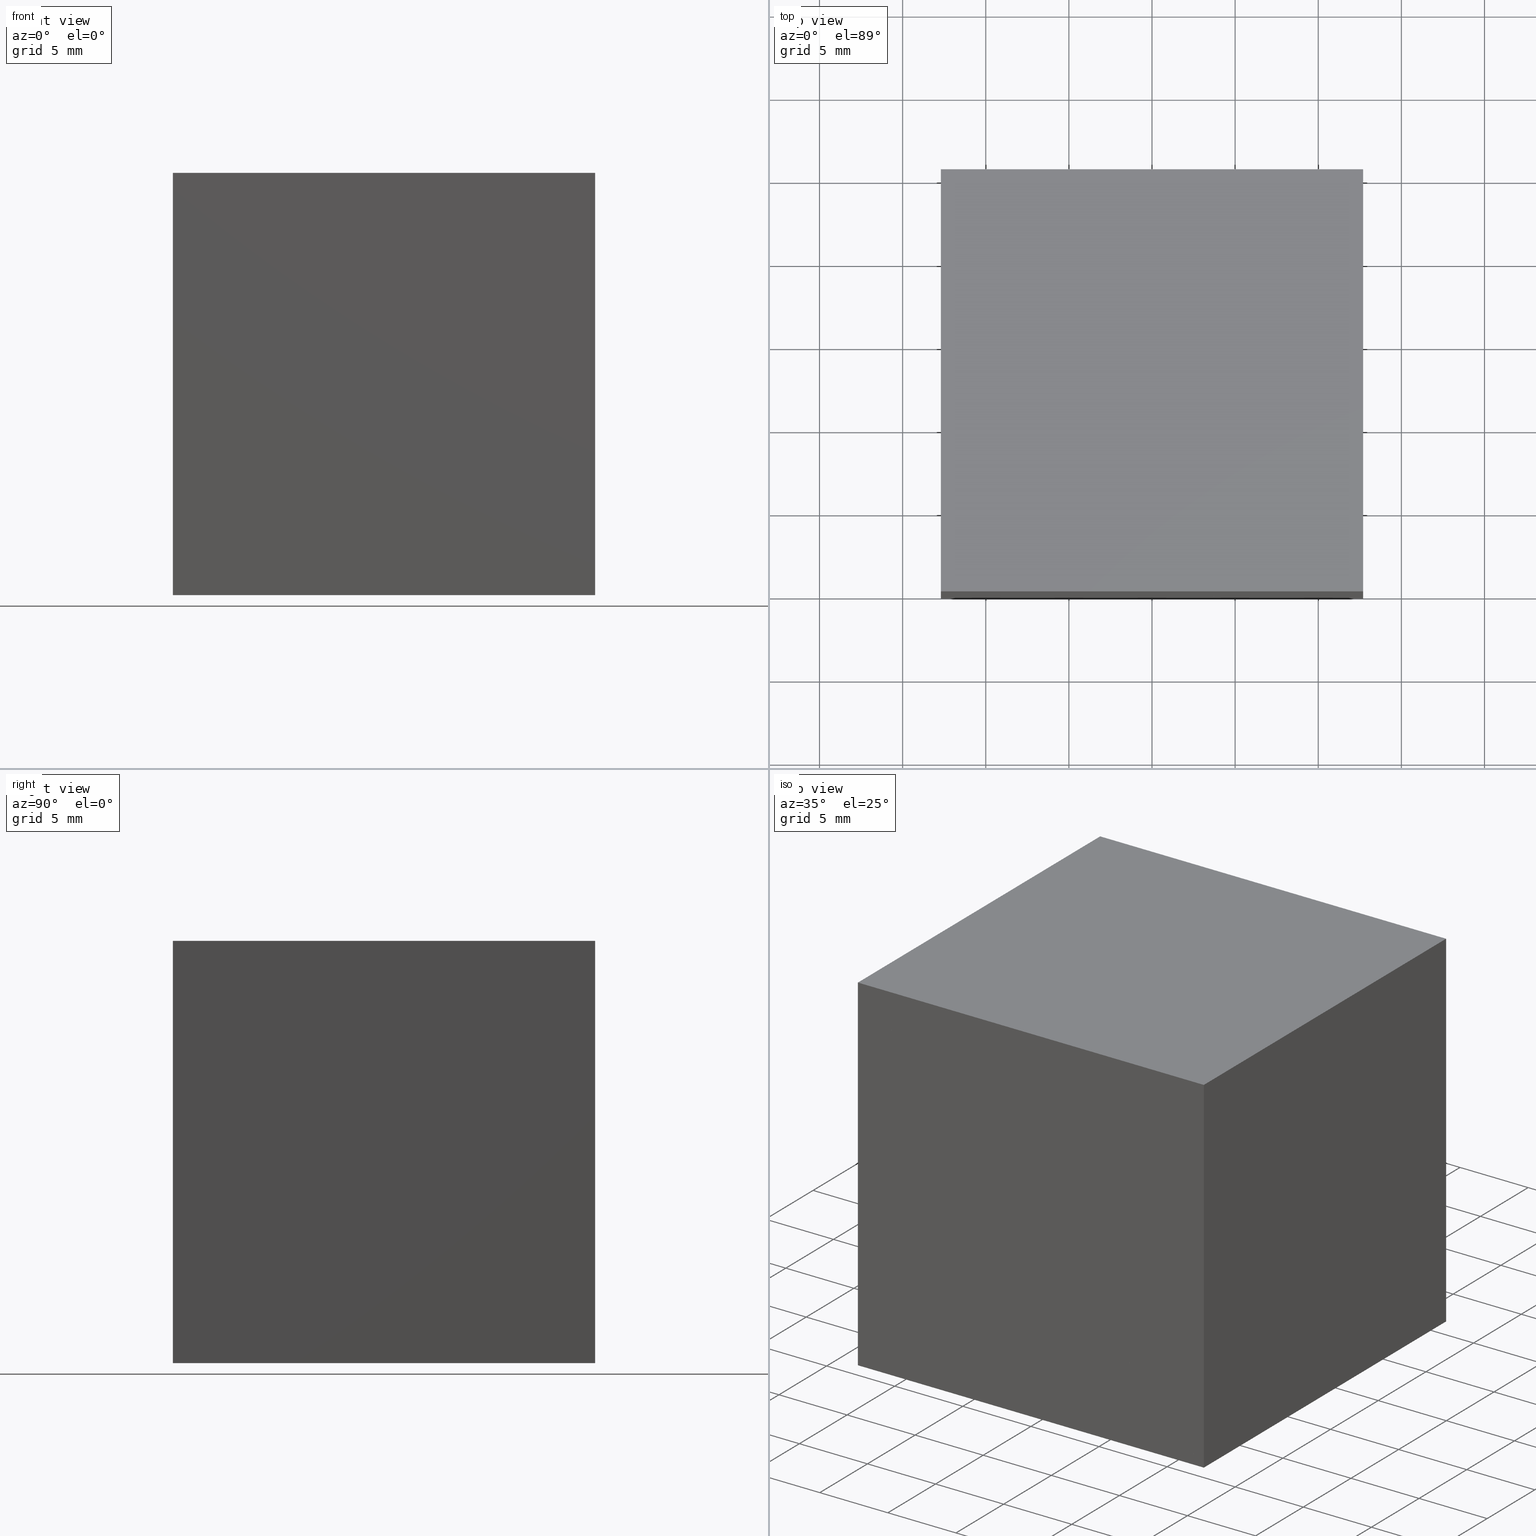
[diagram: canonical four-view strip — front | top / right | iso, engineering-drawing reading convention]
A machine part, canonical four-view strip (front | top / right | iso — engineering-drawing reading convention). The complete STEP part file that produces these views, byte-faithful:
ISO-10303-21;
HEADER;
FILE_DESCRIPTION (( 'STEP AP203' ),
    '1' );
FILE_NAME ('372010.STEP',
    '2021-05-27T01:55:18',
    ( '' ),
    ( '' ),
    'SwSTEP 2.0',
    'SolidWorks 2020',
    '' );
FILE_SCHEMA (( 'CONFIG_CONTROL_DESIGN' ));
ENDSEC;

DATA;
#1 = CARTESIAN_POINT ( 'NONE',  ( 12.69999999999999929, 25.39999999999999858, -12.69999999999999929 ) ) ;
#2 = DIRECTION ( 'NONE',  ( 0.000000000000000000, 1.000000000000000000, 0.000000000000000000 ) ) ;
#3 = ORIENTED_EDGE ( 'NONE', *, *, #107, .F. ) ;
#4 = LINE ( 'NONE', #226, #314 ) ;
#5 = PERSON_AND_ORGANIZATION_ROLE ( 'design_owner' ) ;
#6 = CARTESIAN_POINT ( 'NONE',  ( -12.69999999999999929, 0.000000000000000000, 12.69999999999999929 ) ) ;
#7 = DATE_AND_TIME ( #154, #204 ) ;
#8 = VECTOR ( 'NONE', #189, 1000.000000000000000 ) ;
#9 = EDGE_LOOP ( 'NONE', ( #39, #288, #109, #178 ) ) ;
#10 = PERSON_AND_ORGANIZATION ( #31, #128 ) ;
#11 = EDGE_LOOP ( 'NONE', ( #17, #156, #212, #62 ) ) ;
#12 = APPROVAL_STATUS ( 'not_yet_approved' ) ;
#13 = ORIENTED_EDGE ( 'NONE', *, *, #88, .F. ) ;
#14 = AXIS2_PLACEMENT_3D ( 'NONE', #222, #171, #225 ) ;
#15 = CALENDAR_DATE ( 2021, 27, 5 ) ;
#16 = LOCAL_TIME ( 9, 55, 18.00000000000000000, #232 ) ;
#17 = ORIENTED_EDGE ( 'NONE', *, *, #312, .T. ) ;
#18 = EDGE_CURVE ( 'NONE', #284, #137, #207, .T. ) ;
#19 = PERSON_AND_ORGANIZATION ( #31, #128 ) ;
#20 = PLANE ( 'NONE',  #230 ) ;
#21 = FACE_OUTER_BOUND ( 'NONE', #209, .T. ) ;
#22 = LINE ( 'NONE', #117, #297 ) ;
#23 = PERSON_AND_ORGANIZATION ( #31, #128 ) ;
#24 = DIRECTION ( 'NONE',  ( 0.000000000000000000, 1.000000000000000000, 0.000000000000000000 ) ) ;
#25 = DIRECTION ( 'NONE',  ( 0.000000000000000000, 1.000000000000000000, 0.000000000000000000 ) ) ;
#26 = DIRECTION ( 'NONE',  ( 1.000000000000000000, 0.000000000000000000, 0.000000000000000000 ) ) ;
#27 = VECTOR ( 'NONE', #243, 1000.000000000000000 ) ;
#28 = CC_DESIGN_APPROVAL ( #271, ( #69 ) ) ;
#29 = CARTESIAN_POINT ( 'NONE',  ( -12.69999999999999929, 25.39999999999999858, 12.69999999999999929 ) ) ;
#30 = CARTESIAN_POINT ( 'NONE',  ( 12.69999999999999929, 25.39999999999999858, -12.69999999999999929 ) ) ;
#31 = PERSON ( 'δָ��', 'δָ��', 'δָ��', ('δָ��'), ('δָ��'), ('δָ��') ) ;
#32 = DIRECTION ( 'NONE',  ( -0.7071067811865474617, 0.000000000000000000, 0.7071067811865474617 ) ) ;
#33 = CARTESIAN_POINT ( 'NONE',  ( -12.69999999999999929, 25.39999999999999858, 12.69999999999999929 ) ) ;
#34 = VERTEX_POINT ( 'NONE', #87 ) ;
#35 = APPROVAL_PERSON_ORGANIZATION ( #281, #162, #59 ) ;
#36 = EDGE_LOOP ( 'NONE', ( #37, #259, #161, #13 ) ) ;
#37 = ORIENTED_EDGE ( 'NONE', *, *, #289, .T. ) ;
#38 = COORDINATED_UNIVERSAL_TIME_OFFSET ( 8, 0, .AHEAD. ) ;
#39 = ORIENTED_EDGE ( 'NONE', *, *, #169, .T. ) ;
#40 = AXIS2_PLACEMENT_3D ( 'NONE', #227, #122, #102 ) ;
#41 = DATE_TIME_ROLE ( 'creation_date' ) ;
#42 = DIRECTION ( 'NONE',  ( 0.000000000000000000, -1.000000000000000000, 0.000000000000000000 ) ) ;
#43 = PRODUCT_RELATED_PRODUCT_CATEGORY ( 'detail', '', ( #47 ) ) ;
#44 = CARTESIAN_POINT ( 'NONE',  ( 12.69999999999999929, 25.39999999999999858, 12.69999999999999929 ) ) ;
#45 = DIRECTION ( 'NONE',  ( 0.000000000000000000, 1.000000000000000000, 0.000000000000000000 ) ) ;
#46 = MECHANICAL_CONTEXT ( 'NONE', #153, 'mechanical' ) ;
#47 = PRODUCT ( '372010', '372010', '', ( #46 ) ) ;
#48 = ADVANCED_FACE ( 'NONE', ( #261 ), #182, .T. ) ;
#49 = CARTESIAN_POINT ( 'NONE',  ( 12.69999999999999929, 0.000000000000000000, -12.69999999999999929 ) ) ;
#50 = CARTESIAN_POINT ( 'NONE',  ( -12.69999999999999929, 0.000000000000000000, 12.69999999999999929 ) ) ;
#51 = LINE ( 'NONE', #50, #92 ) ;
#52 = ADVANCED_FACE ( 'NONE', ( #241 ), #20, .T. ) ;
#53 = VECTOR ( 'NONE', #103, 1000.000000000000000 ) ;
#54 = DIRECTION ( 'NONE',  ( -0.7071067811865474617, 0.000000000000000000, 0.7071067811865474617 ) ) ;
#55 = EDGE_CURVE ( 'NONE', #206, #286, #139, .T. ) ;
#56 = ORIENTED_EDGE ( 'NONE', *, *, #307, .T. ) ;
#57 =( LENGTH_UNIT ( ) NAMED_UNIT ( * ) SI_UNIT ( .MILLI., .METRE. ) );
#58 = LOCAL_TIME ( 9, 55, 18.00000000000000000, #229 ) ;
#59 = APPROVAL_ROLE ( '' ) ;
#60 = ORIENTED_EDGE ( 'NONE', *, *, #164, .T. ) ;
#61 = SECURITY_CLASSIFICATION_LEVEL ( 'unclassified' ) ;
#62 = ORIENTED_EDGE ( 'NONE', *, *, #55, .F. ) ;
#63 = PERSON_AND_ORGANIZATION_ROLE ( 'creator' ) ;
#64 = ORIENTED_EDGE ( 'NONE', *, *, #141, .F. ) ;
#65 = CARTESIAN_POINT ( 'NONE',  ( 12.69999999999999929, 0.000000000000000000, -12.69999999999999929 ) ) ;
#66 = AXIS2_PLACEMENT_3D ( 'NONE', #201, #123, #2 ) ;
#67 = VECTOR ( 'NONE', #173, 1000.000000000000000 ) ;
#68 = VECTOR ( 'NONE', #158, 1000.000000000000114 ) ;
#69 = PRODUCT_DEFINITION_FORMATION_WITH_SPECIFIED_SOURCE ( '�κ�', '', #47, .NOT_KNOWN. ) ;
#70 = ORIENTED_EDGE ( 'NONE', *, *, #138, .F. ) ;
#71 = LINE ( 'NONE', #215, #316 ) ;
#72 = PLANE ( 'NONE',  #148 ) ;
#73 = VECTOR ( 'NONE', #193, 1000.000000000000000 ) ;
#74 = CARTESIAN_POINT ( 'NONE',  ( 12.69999999999999929, 25.39999999999999858, 12.69999999999999929 ) ) ;
#75 = ADVANCED_FACE ( 'NONE', ( #270 ), #315, .T. ) ;
#76 = PLANE ( 'NONE',  #203 ) ;
#77 = CC_DESIGN_PERSON_AND_ORGANIZATION_ASSIGNMENT ( #152, #112, ( #170 ) ) ;
#78 = DIRECTION ( 'NONE',  ( 0.7071067811865474617, 0.000000000000000000, -0.7071067811865474617 ) ) ;
#79 = PLANE ( 'NONE',  #14 ) ;
#80 = PLANE ( 'NONE',  #40 ) ;
#81 = VERTEX_POINT ( 'NONE', #118 ) ;
#82 = LINE ( 'NONE', #33, #67 ) ;
#83 = CLOSED_SHELL ( 'NONE', ( #119, #255, #318, #149, #258 ) ) ;
#84 = APPROVAL_STATUS ( 'not_yet_approved' ) ;
#85 = VERTEX_POINT ( 'NONE', #121 ) ;
#86 = DATE_AND_TIME ( #15, #151 ) ;
#87 = CARTESIAN_POINT ( 'NONE',  ( -12.69999999999999929, 0.000000000000000000, -12.69999999999999929 ) ) ;
#88 = EDGE_CURVE ( 'NONE', #34, #127, #71, .T. ) ;
#89 = EDGE_LOOP ( 'NONE', ( #233, #91, #56 ) ) ;
#90 = EDGE_LOOP ( 'NONE', ( #60, #275, #183, #304 ) ) ;
#91 = ORIENTED_EDGE ( 'NONE', *, *, #265, .T. ) ;
#92 = VECTOR ( 'NONE', #78, 1000.000000000000114 ) ;
#93 = CARTESIAN_POINT ( 'NONE',  ( -12.69999999999999929, 25.39999999999999858, -12.69999999999999929 ) ) ;
#94 = CARTESIAN_POINT ( 'NONE',  ( -12.69999999999999929, 0.000000000000000000, 12.69999999999999929 ) ) ;
#95 = FACE_OUTER_BOUND ( 'NONE', #133, .T. ) ;
#96 = DIRECTION ( 'NONE',  ( -0.000000000000000000, 1.000000000000000000, 0.000000000000000000 ) ) ;
#97 = PRODUCT_DEFINITION ( 'δ֪', '', #69, #287 ) ;
#98 = LINE ( 'NONE', #266, #301 ) ;
#99 = PLANE ( 'NONE',  #202 ) ;
#100 =( GEOMETRIC_REPRESENTATION_CONTEXT ( 3 ) GLOBAL_UNCERTAINTY_ASSIGNED_CONTEXT ( ( #179 ) ) GLOBAL_UNIT_ASSIGNED_CONTEXT ( ( #57, #197, #147 ) ) REPRESENTATION_CONTEXT ( 'NONE', 'WORKASPACE' ) );
#101 = APPLICATION_CONTEXT ( 'configuration controlled 3d designs of mechanical parts and assemblies' ) ;
#102 = DIRECTION ( 'NONE',  ( 1.000000000000000000, 0.000000000000000000, 0.000000000000000000 ) ) ;
#103 = DIRECTION ( 'NONE',  ( 0.000000000000000000, 0.000000000000000000, 1.000000000000000000 ) ) ;
#104 = VECTOR ( 'NONE', #165, 1000.000000000000000 ) ;
#105 = LINE ( 'NONE', #279, #191 ) ;
#106 = SHAPE_DEFINITION_REPRESENTATION ( #267, #181 ) ;
#107 = EDGE_CURVE ( 'NONE', #85, #284, #98, .T. ) ;
#108 = ORIENTED_EDGE ( 'NONE', *, *, #55, .T. ) ;
#109 = ORIENTED_EDGE ( 'NONE', *, *, #307, .F. ) ;
#110 = PERSON_AND_ORGANIZATION ( #31, #128 ) ;
#111 = VERTEX_POINT ( 'NONE', #44 ) ;
#112 = PERSON_AND_ORGANIZATION_ROLE ( 'classification_officer' ) ;
#113 = CARTESIAN_POINT ( 'NONE',  ( -12.69999999999999929, 0.000000000000000000, 12.69999999999999929 ) ) ;
#114 = CARTESIAN_POINT ( 'NONE',  ( -3.719743878930840353, 0.000000000000000000, -3.719743878930850123 ) ) ;
#115 = CC_DESIGN_APPROVAL ( #116, ( #97 ) ) ;
#116 = APPROVAL ( #303, 'δָ��' ) ;
#117 = CARTESIAN_POINT ( 'NONE',  ( 12.69999999999999929, 0.000000000000000000, 12.69999999999999929 ) ) ;
#118 = CARTESIAN_POINT ( 'NONE',  ( 12.69999999999999929, 0.000000000000000000, 12.69999999999999929 ) ) ;
#119 = ADVANCED_FACE ( 'NONE', ( #95 ), #76, .F. ) ;
#120 = CARTESIAN_POINT ( 'NONE',  ( -12.69999999999999929, 25.39999999999999858, -12.69999999999999929 ) ) ;
#121 = CARTESIAN_POINT ( 'NONE',  ( -12.69999999999999929, 0.000000000000000000, 12.69999999999999929 ) ) ;
#122 = DIRECTION ( 'NONE',  ( -0.000000000000000000, 1.000000000000000000, 0.000000000000000000 ) ) ;
#123 = DIRECTION ( 'NONE',  ( 1.000000000000000000, 0.000000000000000000, 0.000000000000000000 ) ) ;
#124 = DIRECTION ( 'NONE',  ( 0.000000000000000000, 0.000000000000000000, 1.000000000000000000 ) ) ;
#125 = APPLICATION_PROTOCOL_DEFINITION ( 'international standard', 'config_control_design', 1994, #153 ) ;
#126 = DATE_AND_TIME ( #136, #16 ) ;
#127 = VERTEX_POINT ( 'NONE', #120 ) ;
#128 = ORGANIZATION ( 'δָ��', 'δָ��', '' ) ;
#129 = PERSON_AND_ORGANIZATION ( #31, #128 ) ;
#130 = EDGE_CURVE ( 'NONE', #127, #284, #296, .T. ) ;
#131 = ORIENTED_EDGE ( 'NONE', *, *, #18, .T. ) ;
#132 = CALENDAR_DATE ( 2021, 27, 5 ) ;
#133 = EDGE_LOOP ( 'NONE', ( #223, #196, #282 ) ) ;
#134 = DATE_TIME_ROLE ( 'classification_date' ) ;
#135 = EDGE_LOOP ( 'NONE', ( #231, #313, #257, #3 ) ) ;
#136 = CALENDAR_DATE ( 2021, 27, 5 ) ;
#137 = VERTEX_POINT ( 'NONE', #1 ) ;
#138 = EDGE_CURVE ( 'NONE', #111, #286, #268, .T. ) ;
#139 = LINE ( 'NONE', #219, #251 ) ;
#140 = DIRECTION ( 'NONE',  ( -0.7071067811865475727, 0.000000000000000000, 0.7071067811865475727 ) ) ;
#141 = EDGE_CURVE ( 'NONE', #81, #111, #166, .T. ) ;
#142 = DIRECTION ( 'NONE',  ( 0.000000000000000000, 0.000000000000000000, -1.000000000000000000 ) ) ;
#143 = CARTESIAN_POINT ( 'NONE',  ( 12.69999999999999929, 0.000000000000000000, -12.69999999999999929 ) ) ;
#144 = CARTESIAN_POINT ( 'NONE',  ( 12.69999999999999929, 0.000000000000000000, -12.69999999999999929 ) ) ;
#145 = AXIS2_PLACEMENT_3D ( 'NONE', #167, #96, #249 ) ;
#146 = LINE ( 'NONE', #6, #224 ) ;
#147 =( NAMED_UNIT ( * ) SI_UNIT ( $, .STERADIAN. ) SOLID_ANGLE_UNIT ( ) );
#148 = AXIS2_PLACEMENT_3D ( 'NONE', #114, #298, #292 ) ;
#149 = ADVANCED_FACE ( 'NONE', ( #245 ), #247, .T. ) ;
#150 = CARTESIAN_POINT ( 'NONE',  ( -12.69999999999999929, 25.39999999999999858, 12.69999999999999929 ) ) ;
#151 = LOCAL_TIME ( 9, 55, 18.00000000000000000, #285 ) ;
#152 = PERSON_AND_ORGANIZATION ( #31, #128 ) ;
#153 = APPLICATION_CONTEXT ( 'configuration controlled 3d designs of mechanical parts and assemblies' ) ;
#154 = CALENDAR_DATE ( 2021, 27, 5 ) ;
#155 = VERTEX_POINT ( 'NONE', #94 ) ;
#156 = ORIENTED_EDGE ( 'NONE', *, *, #269, .T. ) ;
#157 = CALENDAR_DATE ( 2021, 27, 5 ) ;
#158 = DIRECTION ( 'NONE',  ( 0.7071067811865474617, 0.000000000000000000, -0.7071067811865474617 ) ) ;
#159 = EDGE_CURVE ( 'NONE', #85, #198, #51, .T. ) ;
#160 = DIRECTION ( 'NONE',  ( 0.000000000000000000, 0.000000000000000000, -1.000000000000000000 ) ) ;
#161 = ORIENTED_EDGE ( 'NONE', *, *, #130, .F. ) ;
#162 = APPROVAL ( #12, 'δָ��' ) ;
#163 = DIRECTION ( 'NONE',  ( 0.000000000000000000, -1.000000000000000000, 0.000000000000000000 ) ) ;
#164 = EDGE_CURVE ( 'NONE', #198, #34, #317, .T. ) ;
#165 = DIRECTION ( 'NONE',  ( 0.000000000000000000, 0.000000000000000000, 1.000000000000000000 ) ) ;
#166 = LINE ( 'NONE', #299, #8 ) ;
#167 = CARTESIAN_POINT ( 'NONE',  ( -3.719743878930840353, 25.39999999999999858, -3.719743878930850123 ) ) ;
#168 = LINE ( 'NONE', #200, #53 ) ;
#169 = EDGE_CURVE ( 'NONE', #155, #81, #216, .T. ) ;
#170 = SECURITY_CLASSIFICATION ( '', '', #61 ) ;
#171 = DIRECTION ( 'NONE',  ( -1.000000000000000000, 0.000000000000000000, 0.000000000000000000 ) ) ;
#172 = FACE_OUTER_BOUND ( 'NONE', #9, .T. ) ;
#173 = DIRECTION ( 'NONE',  ( 1.000000000000000000, 0.000000000000000000, 0.000000000000000000 ) ) ;
#174 = CARTESIAN_POINT ( 'NONE',  ( 12.69999999999999929, 25.39999999999999858, -12.69999999999999929 ) ) ;
#175 = APPROVAL_DATE_TIME ( #86, #116 ) ;
#176 = EDGE_LOOP ( 'NONE', ( #311, #108, #70, #64 ) ) ;
#177 = DATE_AND_TIME ( #157, #244 ) ;
#178 = ORIENTED_EDGE ( 'NONE', *, *, #269, .F. ) ;
#179 = UNCERTAINTY_MEASURE_WITH_UNIT (LENGTH_MEASURE( 1.000000000000000082E-05 ), #57, 'distance_accuracy_value', 'NONE');
#180 = EDGE_LOOP ( 'NONE', ( #262, #131, #309 ) ) ;
#181 = ADVANCED_BREP_SHAPE_REPRESENTATION ( '372010', ( #248, #246, #283 ), #100 ) ;
#182 = PLANE ( 'NONE',  #263 ) ;
#183 = ORIENTED_EDGE ( 'NONE', *, *, #278, .F. ) ;
#184 = CC_DESIGN_SECURITY_CLASSIFICATION ( #170, ( #69 ) ) ;
#185 = AXIS2_PLACEMENT_3D ( 'NONE', #195, #186, #140 ) ;
#186 = DIRECTION ( 'NONE',  ( -0.7071067811865475727, 0.000000000000000000, -0.7071067811865475727 ) ) ;
#187 = DIRECTION ( 'NONE',  ( 0.000000000000000000, 0.000000000000000000, 1.000000000000000000 ) ) ;
#188 = ADVANCED_FACE ( 'NONE', ( #21 ), #72, .F. ) ;
#189 = DIRECTION ( 'NONE',  ( 0.000000000000000000, 1.000000000000000000, 0.000000000000000000 ) ) ;
#190 = CARTESIAN_POINT ( 'NONE',  ( 3.719743878930840353, 0.000000000000000000, 3.719743878930850123 ) ) ;
#191 = VECTOR ( 'NONE', #32, 1000.000000000000114 ) ;
#192 = APPROVAL_PERSON_ORGANIZATION ( #129, #271, #205 ) ;
#193 = DIRECTION ( 'NONE',  ( 1.000000000000000000, 0.000000000000000000, 0.000000000000000000 ) ) ;
#194 = EDGE_CURVE ( 'NONE', #198, #137, #213, .T. ) ;
#195 = CARTESIAN_POINT ( 'NONE',  ( 12.69999999999999929, 0.000000000000000000, -12.69999999999999929 ) ) ;
#196 = ORIENTED_EDGE ( 'NONE', *, *, #169, .F. ) ;
#197 =( NAMED_UNIT ( * ) PLANE_ANGLE_UNIT ( ) SI_UNIT ( $, .RADIAN. ) );
#198 = VERTEX_POINT ( 'NONE', #144 ) ;
#199 = EDGE_CURVE ( 'NONE', #81, #206, #22, .T. ) ;
#200 = CARTESIAN_POINT ( 'NONE',  ( -12.69999999999999929, 0.000000000000000000, -12.69999999999999929 ) ) ;
#201 = CARTESIAN_POINT ( 'NONE',  ( 12.69999999999999929, 0.000000000000000000, 12.69999999999999929 ) ) ;
#202 = AXIS2_PLACEMENT_3D ( 'NONE', #300, #124, #274 ) ;
#203 = AXIS2_PLACEMENT_3D ( 'NONE', #190, #319, #26 ) ;
#204 = LOCAL_TIME ( 9, 55, 18.00000000000000000, #236 ) ;
#205 = APPROVAL_ROLE ( '' ) ;
#206 = VERTEX_POINT ( 'NONE', #214 ) ;
#207 = LINE ( 'NONE', #306, #68 ) ;
#208 = VECTOR ( 'NONE', #264, 1000.000000000000000 ) ;
#209 = EDGE_LOOP ( 'NONE', ( #237, #290, #211 ) ) ;
#210 = APPROVAL_ROLE ( '' ) ;
#211 = ORIENTED_EDGE ( 'NONE', *, *, #159, .F. ) ;
#212 = ORIENTED_EDGE ( 'NONE', *, *, #265, .F. ) ;
#213 = LINE ( 'NONE', #49, #27 ) ;
#214 = CARTESIAN_POINT ( 'NONE',  ( 12.69999999999999929, 0.000000000000000000, -12.69999999999999929 ) ) ;
#215 = CARTESIAN_POINT ( 'NONE',  ( -12.69999999999999929, 0.000000000000000000, -12.69999999999999929 ) ) ;
#216 = LINE ( 'NONE', #242, #73 ) ;
#217 = VECTOR ( 'NONE', #252, 1000.000000000000000 ) ;
#218 = CLOSED_SHELL ( 'NONE', ( #188, #75, #228, #52, #48 ) ) ;
#219 = CARTESIAN_POINT ( 'NONE',  ( 12.69999999999999929, 0.000000000000000000, -12.69999999999999929 ) ) ;
#220 = CC_DESIGN_PERSON_AND_ORGANIZATION_ASSIGNMENT ( #240, #310, ( #69 ) ) ;
#221 = FACE_OUTER_BOUND ( 'NONE', #89, .T. ) ;
#222 = CARTESIAN_POINT ( 'NONE',  ( -12.69999999999999929, 0.000000000000000000, -12.69999999999999929 ) ) ;
#223 = ORIENTED_EDGE ( 'NONE', *, *, #199, .F. ) ;
#224 = VECTOR ( 'NONE', #273, 1000.000000000000000 ) ;
#225 = DIRECTION ( 'NONE',  ( 0.000000000000000000, 0.000000000000000000, 1.000000000000000000 ) ) ;
#226 = CARTESIAN_POINT ( 'NONE',  ( 12.69999999999999929, 25.39999999999999858, -12.69999999999999929 ) ) ;
#227 = CARTESIAN_POINT ( 'NONE',  ( 3.719743878930840353, 25.39999999999999858, 3.719743878930850123 ) ) ;
#228 = ADVANCED_FACE ( 'NONE', ( #295 ), #79, .T. ) ;
#229 = COORDINATED_UNIVERSAL_TIME_OFFSET ( 8, 0, .AHEAD. ) ;
#230 = AXIS2_PLACEMENT_3D ( 'NONE', #113, #321, #163 ) ;
#231 = ORIENTED_EDGE ( 'NONE', *, *, #159, .T. ) ;
#232 = COORDINATED_UNIVERSAL_TIME_OFFSET ( 8, 0, .AHEAD. ) ;
#233 = ORIENTED_EDGE ( 'NONE', *, *, #138, .T. ) ;
#234 = CARTESIAN_POINT ( 'NONE',  ( 0.000000000000000000, 0.000000000000000000, 0.000000000000000000 ) ) ;
#235 = VERTEX_POINT ( 'NONE', #29 ) ;
#236 = COORDINATED_UNIVERSAL_TIME_OFFSET ( 8, 0, .AHEAD. ) ;
#237 = ORIENTED_EDGE ( 'NONE', *, *, #289, .F. ) ;
#238 = CC_DESIGN_PERSON_AND_ORGANIZATION_ASSIGNMENT ( #23, #5, ( #47 ) ) ;
#239 = CC_DESIGN_APPROVAL ( #162, ( #170 ) ) ;
#240 = PERSON_AND_ORGANIZATION ( #31, #128 ) ;
#241 = FACE_OUTER_BOUND ( 'NONE', #135, .T. ) ;
#242 = CARTESIAN_POINT ( 'NONE',  ( -12.69999999999999929, 0.000000000000000000, 12.69999999999999929 ) ) ;
#243 = DIRECTION ( 'NONE',  ( 0.000000000000000000, 1.000000000000000000, 0.000000000000000000 ) ) ;
#244 = LOCAL_TIME ( 9, 55, 18.00000000000000000, #38 ) ;
#245 = FACE_OUTER_BOUND ( 'NONE', #11, .T. ) ;
#246 = MANIFOLD_SOLID_BREP ( '���2.stp[2]', #83 ) ;
#247 = PLANE ( 'NONE',  #185 ) ;
#248 = MANIFOLD_SOLID_BREP ( '���2.stp[1]', #218 ) ;
#249 = DIRECTION ( 'NONE',  ( 1.000000000000000000, 0.000000000000000000, 0.000000000000000000 ) ) ;
#250 = CC_DESIGN_DATE_AND_TIME_ASSIGNMENT ( #126, #41, ( #97 ) ) ;
#251 = VECTOR ( 'NONE', #24, 1000.000000000000000 ) ;
#252 = DIRECTION ( 'NONE',  ( -1.000000000000000000, 0.000000000000000000, 0.000000000000000000 ) ) ;
#253 = CC_DESIGN_DATE_AND_TIME_ASSIGNMENT ( #260, #134, ( #170 ) ) ;
#254 = APPROVAL_PERSON_ORGANIZATION ( #110, #116, #210 ) ;
#255 = ADVANCED_FACE ( 'NONE', ( #221 ), #80, .T. ) ;
#256 = APPROVAL_DATE_TIME ( #7, #162 ) ;
#257 = ORIENTED_EDGE ( 'NONE', *, *, #18, .F. ) ;
#258 = ADVANCED_FACE ( 'NONE', ( #172 ), #99, .T. ) ;
#259 = ORIENTED_EDGE ( 'NONE', *, *, #107, .T. ) ;
#260 = DATE_AND_TIME ( #132, #58 ) ;
#261 = FACE_OUTER_BOUND ( 'NONE', #90, .T. ) ;
#262 = ORIENTED_EDGE ( 'NONE', *, *, #130, .T. ) ;
#263 = AXIS2_PLACEMENT_3D ( 'NONE', #65, #160, #42 ) ;
#264 = DIRECTION ( 'NONE',  ( -1.000000000000000000, 0.000000000000000000, 0.000000000000000000 ) ) ;
#265 = EDGE_CURVE ( 'NONE', #286, #235, #4, .T. ) ;
#266 = CARTESIAN_POINT ( 'NONE',  ( -12.69999999999999929, 0.000000000000000000, 12.69999999999999929 ) ) ;
#267 = PRODUCT_DEFINITION_SHAPE ( 'NONE', 'NONE',  #97 ) ;
#268 = LINE ( 'NONE', #74, #291 ) ;
#269 = EDGE_CURVE ( 'NONE', #155, #235, #146, .T. ) ;
#270 = FACE_OUTER_BOUND ( 'NONE', #180, .T. ) ;
#271 = APPROVAL ( #84, 'δָ��' ) ;
#272 = DIRECTION ( 'NONE',  ( 0.000000000000000000, 0.000000000000000000, -1.000000000000000000 ) ) ;
#273 = DIRECTION ( 'NONE',  ( 0.000000000000000000, 1.000000000000000000, 0.000000000000000000 ) ) ;
#274 = DIRECTION ( 'NONE',  ( 1.000000000000000000, 0.000000000000000000, 0.000000000000000000 ) ) ;
#275 = ORIENTED_EDGE ( 'NONE', *, *, #88, .T. ) ;
#276 = LINE ( 'NONE', #174, #217 ) ;
#277 = PLANE ( 'NONE',  #66 ) ;
#278 = EDGE_CURVE ( 'NONE', #137, #127, #276, .T. ) ;
#279 = CARTESIAN_POINT ( 'NONE',  ( 12.69999999999999929, 0.000000000000000000, -12.69999999999999929 ) ) ;
#280 = PERSON_AND_ORGANIZATION_ROLE ( 'creator' ) ;
#281 = PERSON_AND_ORGANIZATION ( #31, #128 ) ;
#282 = ORIENTED_EDGE ( 'NONE', *, *, #312, .F. ) ;
#283 = AXIS2_PLACEMENT_3D ( 'NONE', #234, #187, #293 ) ;
#284 = VERTEX_POINT ( 'NONE', #150 ) ;
#285 = COORDINATED_UNIVERSAL_TIME_OFFSET ( 8, 0, .AHEAD. ) ;
#286 = VERTEX_POINT ( 'NONE', #30 ) ;
#287 = DESIGN_CONTEXT ( 'detailed design', #101, 'design' ) ;
#288 = ORIENTED_EDGE ( 'NONE', *, *, #141, .T. ) ;
#289 = EDGE_CURVE ( 'NONE', #34, #85, #168, .T. ) ;
#290 = ORIENTED_EDGE ( 'NONE', *, *, #164, .F. ) ;
#291 = VECTOR ( 'NONE', #272, 1000.000000000000000 ) ;
#292 = DIRECTION ( 'NONE',  ( 1.000000000000000000, 0.000000000000000000, 0.000000000000000000 ) ) ;
#293 = DIRECTION ( 'NONE',  ( 1.000000000000000000, 0.000000000000000000, 0.000000000000000000 ) ) ;
#294 = CC_DESIGN_PERSON_AND_ORGANIZATION_ASSIGNMENT ( #10, #63, ( #69 ) ) ;
#295 = FACE_OUTER_BOUND ( 'NONE', #36, .T. ) ;
#296 = LINE ( 'NONE', #93, #104 ) ;
#297 = VECTOR ( 'NONE', #142, 1000.000000000000000 ) ;
#298 = DIRECTION ( 'NONE',  ( -0.000000000000000000, 1.000000000000000000, 0.000000000000000000 ) ) ;
#299 = CARTESIAN_POINT ( 'NONE',  ( 12.69999999999999929, 0.000000000000000000, 12.69999999999999929 ) ) ;
#300 = CARTESIAN_POINT ( 'NONE',  ( -12.69999999999999929, 0.000000000000000000, 12.69999999999999929 ) ) ;
#301 = VECTOR ( 'NONE', #45, 1000.000000000000000 ) ;
#302 = FACE_OUTER_BOUND ( 'NONE', #176, .T. ) ;
#303 = APPROVAL_STATUS ( 'not_yet_approved' ) ;
#304 = ORIENTED_EDGE ( 'NONE', *, *, #194, .F. ) ;
#305 = APPLICATION_PROTOCOL_DEFINITION ( 'international standard', 'config_control_design', 1994, #101 ) ;
#306 = CARTESIAN_POINT ( 'NONE',  ( -12.69999999999999929, 25.39999999999999858, 12.69999999999999929 ) ) ;
#307 = EDGE_CURVE ( 'NONE', #235, #111, #82, .T. ) ;
#308 = APPROVAL_DATE_TIME ( #177, #271 ) ;
#309 = ORIENTED_EDGE ( 'NONE', *, *, #278, .T. ) ;
#310 = PERSON_AND_ORGANIZATION_ROLE ( 'design_supplier' ) ;
#311 = ORIENTED_EDGE ( 'NONE', *, *, #199, .T. ) ;
#312 = EDGE_CURVE ( 'NONE', #206, #155, #105, .T. ) ;
#313 = ORIENTED_EDGE ( 'NONE', *, *, #194, .T. ) ;
#314 = VECTOR ( 'NONE', #54, 1000.000000000000114 ) ;
#315 = PLANE ( 'NONE',  #145 ) ;
#316 = VECTOR ( 'NONE', #25, 1000.000000000000000 ) ;
#317 = LINE ( 'NONE', #143, #208 ) ;
#318 = ADVANCED_FACE ( 'NONE', ( #302 ), #277, .T. ) ;
#319 = DIRECTION ( 'NONE',  ( -0.000000000000000000, 1.000000000000000000, 0.000000000000000000 ) ) ;
#320 = CC_DESIGN_PERSON_AND_ORGANIZATION_ASSIGNMENT ( #19, #280, ( #97 ) ) ;
#321 = DIRECTION ( 'NONE',  ( 0.7071067811865475727, 0.000000000000000000, 0.7071067811865475727 ) ) ;
ENDSEC;
END-ISO-10303-21;
